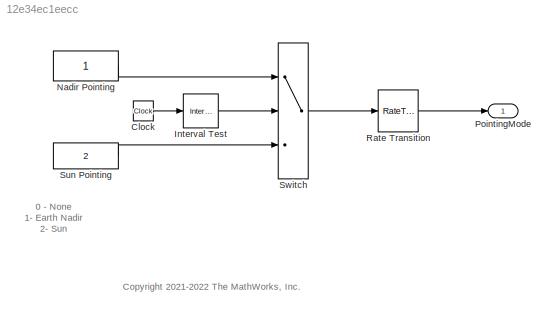
MODEL slx_12e34ec1eecc
KIND model
CONFIG AbsTol = auto
CONFIG EnableMultiTasking = off
CONFIG FixedStep = auto
CONFIG MaxStep = auto
CONFIG MinStep = auto
CONFIG RelTol = 1e-3
CONFIG SampleTimeConstraint = Unconstrained
CONFIG SolverName = VariableStepAuto
CONFIG StartTime = 0.0
CONFIG StopTime = 10.0
BLOCK [Clock] Clock
  Decimation = 1
BLOCK [Reference] Interval Test  REF=simulink/Logic and Bit
Operations/Interval Test
  SourceBlock = simulink/Logic and Bit\nOperations/Interval Test
  SourceType = Interval Test
BLOCK [Constant] Nadir Pointing
  SampleTime = CubeSatTimeStep
BLOCK [Outport] PointingMode
BLOCK [RateTransition] Rate Transition
  OutPortSampleTime = CubeSatTimeStep
BLOCK [Constant] Sun Pointing
  SampleTime = CubeSatTimeStep
  Value = 2
BLOCK [Switch] Switch
  InputSameDT = off
  SaturateOnIntegerOverflow = off
  Threshold = 1
ANNOTATION (root): 0 - None 1- Earth Nadir 2- Sun
ANNOTATION (root): <copyright redacted>
LINE Clock:1 -> Interval Test:1
LINE Interval Test:1 -> Switch:2
LINE Nadir Pointing:1 -> Switch:1
LINE Rate Transition:1 -> PointingMode:1
LINE Sun Pointing:1 -> Switch:3
LINE Switch:1 -> Rate Transition:1
